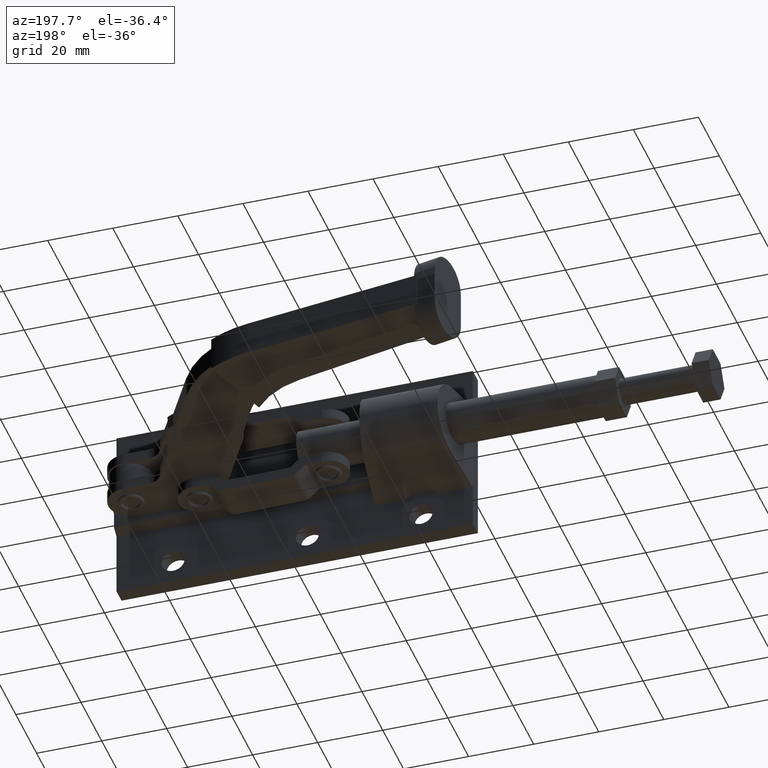
[diagram: clean part render]
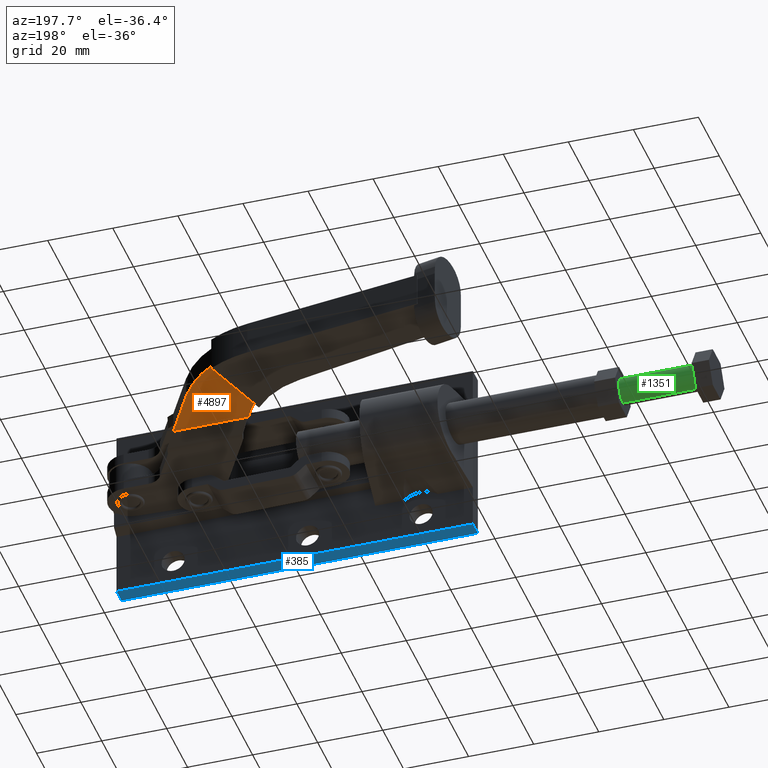
[diagram: same view with three faces highlighted in distinct colors, each labeled with its STEP entity id]
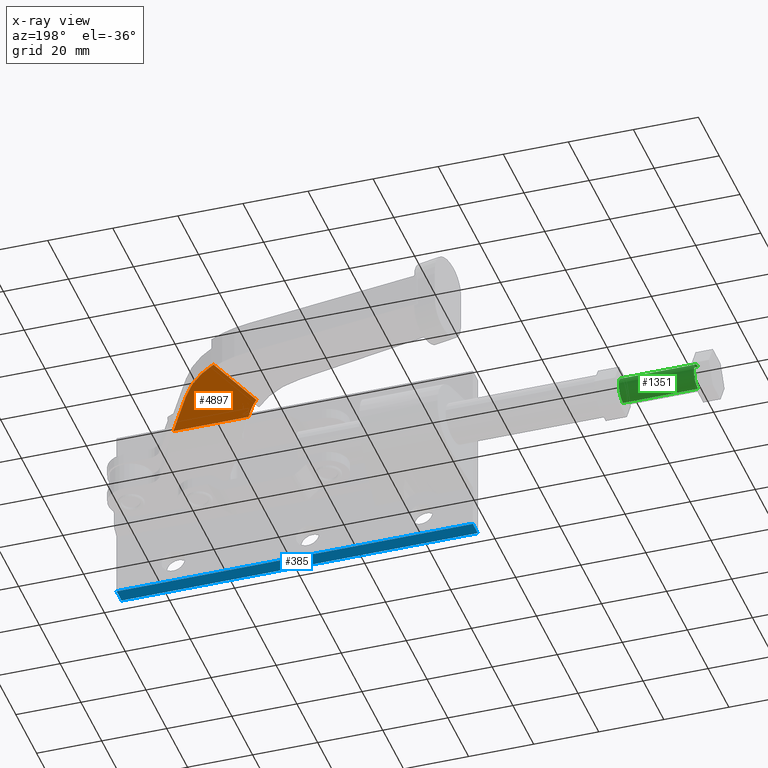
[diagram: x-ray of the same camera — body ghosted, the three highlighted faces saturated]
A machine part, auxiliary view with three faces highlighted in distinct colors.
The next image is the same camera in x-ray (body ghosted, the three faces saturated) — at least one of them is partly hidden behind the body in this view.
Their STEP definitions:

[orange] entity #4897 — the highlighted planar face has unit normal (0, 0, -1).
#431 = CARTESIAN_POINT ( 'NONE',  ( 3.866051372036730000, 70.88861199244561800, -3.125000000000017300 ) ) ;
#726 = CIRCLE ( 'NONE', #759, 33.99999999999999300 ) ;
#759 = AXIS2_PLACEMENT_3D ( 'NONE', #8091, #3936, #8782 ) ;
#836 = CARTESIAN_POINT ( 'NONE',  ( 0.3942034234371977200, 45.93280350291551200, -3.125000000000020000 ) ) ;
#1465 = CARTESIAN_POINT ( 'NONE',  ( 19.24965462170590800, 13.17531681489602000, -3.125000000000015100 ) ) ;
#1475 = AXIS2_PLACEMENT_3D ( 'NONE', #3549, #8418, #4269 ) ;
#1614 = LINE ( 'NONE', #8722, #3243 ) ;
#1622 = VECTOR ( 'NONE', #8994, 1000.000000000000100 ) ;
#1674 = ORIENTED_EDGE ( 'NONE', *, *, #4936, .F. ) ;
#1685 = CARTESIAN_POINT ( 'NONE',  ( -24.73947997960927100, 31.46566976483779900, -3.125000000000020000 ) ) ;
#1790 = DIRECTION ( 'NONE',  ( 0.3106917609542796400, 0.9505107204419783700, 4.767727634121596400E-017 ) ) ;
#2402 = DIRECTION ( 'NONE',  ( 0.9999991443707730900, -0.001308150496583738700, 1.495451272393800000E-016 ) ) ;
#2788 = ORIENTED_EDGE ( 'NONE', *, *, #8765, .F. ) ;
#2880 = DIRECTION ( 'NONE',  ( 0.4988666806233697000, -0.8666787380360849700, 5.515547311301807900E-017 ) ) ;
#3160 = EDGE_CURVE ( 'NONE', #4190, #6098, #5808, .T. ) ;
#3243 = VECTOR ( 'NONE', #1790, 1000.000000000000100 ) ;
#3430 = CARTESIAN_POINT ( 'NONE',  ( 34.35970871110382800, 27.01556243225421700, -3.125000000000013300 ) ) ;
#3456 = EDGE_CURVE ( 'NONE', #8095, #6876, #1614, .T. ) ;
#3549 = CARTESIAN_POINT ( 'NONE',  ( 25.55892362962334700, 16.69071506896925800, -3.125000000000013300 ) ) ;
#3936 = DIRECTION ( 'NONE',  ( -1.528120581711288000E-016, -2.102331816807094500E-019, 1.000000000000000000 ) ) ;
#4087 = VERTEX_POINT ( 'NONE', #8794 ) ;
#4178 = EDGE_LOOP ( 'NONE', ( #6272, #2788, #4880, #5044, #1674, #5832 ) ) ;
#4190 = VERTEX_POINT ( 'NONE', #8200 ) ;
#4269 = DIRECTION ( 'NONE',  ( 0.9999991443707730900, -0.001308150496583842500, 1.528116524040245800E-016 ) ) ;
#4485 = DIRECTION ( 'NONE',  ( -0.9999991443707729700, 0.001308150496583842300, -1.528116524040245500E-016 ) ) ;
#4880 = ORIENTED_EDGE ( 'NONE', *, *, #3160, .F. ) ;
#4897 = ADVANCED_FACE ( 'NONE', ( #6618 ), #6323, .T. ) ;
#4936 = EDGE_CURVE ( 'NONE', #8561, #4087, #7799, .T. ) ;
#5044 = ORIENTED_EDGE ( 'NONE', *, *, #6767, .T. ) ;
#5128 = CARTESIAN_POINT ( 'NONE',  ( -2.815316489072857000, 50.44805779269746900, -3.125000000000016900 ) ) ;
#5328 = AXIS2_PLACEMENT_3D ( 'NONE', #1685, #6596, #2402 ) ;
#5516 = VECTOR ( 'NONE', #4485, 1000.000000000000200 ) ;
#5740 = LINE ( 'NONE', #6580, #5516 ) ;
#5756 = VECTOR ( 'NONE', #2880, 1000.000000000000200 ) ;
#5790 = EDGE_CURVE ( 'NONE', #8095, #8561, #7552, .T. ) ;
#5808 = LINE ( 'NONE', #3430, #1622 ) ;
#5832 = ORIENTED_EDGE ( 'NONE', *, *, #5790, .F. ) ;
#6098 = VERTEX_POINT ( 'NONE', #7005 ) ;
#6272 = ORIENTED_EDGE ( 'NONE', *, *, #3456, .T. ) ;
#6323 = PLANE ( 'NONE',  #1475 ) ;
#6580 = CARTESIAN_POINT ( 'NONE',  ( 25.59349321490081800, 43.11699842780213000, -3.125000000000011500 ) ) ;
#6596 = DIRECTION ( 'NONE',  ( 1.528120581711288000E-016, 2.102331816807094500E-019, -1.000000000000000000 ) ) ;
#6618 = FACE_OUTER_BOUND ( 'NONE', #4178, .T. ) ;
#6767 = EDGE_CURVE ( 'NONE', #4190, #4087, #5740, .T. ) ;
#6876 = VERTEX_POINT ( 'NONE', #431 ) ;
#7005 = CARTESIAN_POINT ( 'NONE',  ( 16.27084289636472300, 58.44126393878162400, -3.125000000000011500 ) ) ;
#7552 = CIRCLE ( 'NONE', #5328, 28.99999999999998600 ) ;
#7799 = LINE ( 'NONE', #1465, #5756 ) ;
#8091 = CARTESIAN_POINT ( 'NONE',  ( -13.19623419686215900, 41.47979679758706300, -3.125000000000020000 ) ) ;
#8095 = VERTEX_POINT ( 'NONE', #5128 ) ;
#8200 = CARTESIAN_POINT ( 'NONE',  ( 25.09122507047121400, 43.11765547068687000, -3.124999992413085800 ) ) ;
#8418 = DIRECTION ( 'NONE',  ( 1.528120581711288000E-016, 2.102331816807094800E-019, -1.000000000000000000 ) ) ;
#8561 = VERTEX_POINT ( 'NONE', #836 ) ;
#8722 = CARTESIAN_POINT ( 'NONE',  ( -10.04544730164047600, 28.32865293163745000, -3.125000000000018200 ) ) ;
#8765 = EDGE_CURVE ( 'NONE', #6098, #6876, #726, .T. ) ;
#8782 = DIRECTION ( 'NONE',  ( 0.9999991443707730900, -0.001308150496583850800, 1.530638361156006500E-016 ) ) ;
#8794 = CARTESIAN_POINT ( 'NONE',  ( 1.997234062796788200, 43.14786591234062000, -3.124999992413088000 ) ) ;
#8994 = DIRECTION ( 'NONE',  ( -0.4988666806233699200, 0.8666787380360848600, -1.106666243442759400E-016 ) ) ;

[blue] entity #385 — the highlighted planar face has unit normal (0, 0, 1).
#169 = CARTESIAN_POINT ( 'NONE',  ( -54.75000000000000000, 4.799999999999999800, -27.79999999999999700 ) ) ;
#385 = ADVANCED_FACE ( 'NONE', ( #8430 ), #2816, .F. ) ;
#393 = EDGE_CURVE ( 'NONE', #1852, #4440, #4968, .T. ) ;
#438 = EDGE_LOOP ( 'NONE', ( #6308, #8415, #4669, #5686 ) ) ;
#1031 = DIRECTION ( 'NONE',  ( -1.000000000000000000, -0.0000000000000000000, 1.267377881992187900E-016 ) ) ;
#1233 = CARTESIAN_POINT ( 'NONE',  ( 54.75000000000000000, 4.799999999999999800, -27.80000000000001100 ) ) ;
#1852 = VERTEX_POINT ( 'NONE', #2805 ) ;
#2175 = EDGE_CURVE ( 'NONE', #7482, #8606, #7537, .T. ) ;
#2324 = CARTESIAN_POINT ( 'NONE',  ( 54.75000000000000000, 4.799999999999999800, -27.80000000000001100 ) ) ;
#2535 = LINE ( 'NONE', #3907, #7868 ) ;
#2655 = LINE ( 'NONE', #4425, #6176 ) ;
#2805 = CARTESIAN_POINT ( 'NONE',  ( -54.75000000000000000, 4.799999999999999800, -27.79999999999999700 ) ) ;
#2816 = PLANE ( 'NONE',  #6209 ) ;
#3524 = CARTESIAN_POINT ( 'NONE',  ( -54.75000000000000000, 0.0000000000000000000, -27.79999999999999700 ) ) ;
#3907 = CARTESIAN_POINT ( 'NONE',  ( -54.75000000000000000, 4.799999999999999800, -27.79999999999999700 ) ) ;
#4060 = VECTOR ( 'NONE', #6156, 1000.000000000000000 ) ;
#4403 = CARTESIAN_POINT ( 'NONE',  ( -54.75000000000000000, 4.799999999999999800, -27.79999999999999700 ) ) ;
#4425 = CARTESIAN_POINT ( 'NONE',  ( -54.75000000000000000, 0.0000000000000000000, -27.79999999999999700 ) ) ;
#4440 = VERTEX_POINT ( 'NONE', #3524 ) ;
#4669 = ORIENTED_EDGE ( 'NONE', *, *, #5890, .F. ) ;
#4755 = VECTOR ( 'NONE', #7908, 1000.000000000000000 ) ;
#4968 = LINE ( 'NONE', #169, #4755 ) ;
#5009 = DIRECTION ( 'NONE',  ( 1.000000000000000000, 0.0000000000000000000, -1.267377881992187900E-016 ) ) ;
#5115 = DIRECTION ( 'NONE',  ( -1.000000000000000000, -0.0000000000000000000, 1.267377881992187900E-016 ) ) ;
#5686 = ORIENTED_EDGE ( 'NONE', *, *, #2175, .T. ) ;
#5890 = EDGE_CURVE ( 'NONE', #7482, #1852, #2535, .T. ) ;
#6156 = DIRECTION ( 'NONE',  ( -0.0000000000000000000, -1.000000000000000000, -0.0000000000000000000 ) ) ;
#6176 = VECTOR ( 'NONE', #5115, 1000.000000000000000 ) ;
#6209 = AXIS2_PLACEMENT_3D ( 'NONE', #4403, #7730, #5009 ) ;
#6308 = ORIENTED_EDGE ( 'NONE', *, *, #6701, .T. ) ;
#6701 = EDGE_CURVE ( 'NONE', #8606, #4440, #2655, .T. ) ;
#7482 = VERTEX_POINT ( 'NONE', #2324 ) ;
#7537 = LINE ( 'NONE', #1233, #4060 ) ;
#7730 = DIRECTION ( 'NONE',  ( 1.267377881992187900E-016, -0.0000000000000000000, 1.000000000000000000 ) ) ;
#7856 = CARTESIAN_POINT ( 'NONE',  ( 54.75000000000000000, 0.0000000000000000000, -27.80000000000001100 ) ) ;
#7868 = VECTOR ( 'NONE', #1031, 1000.000000000000000 ) ;
#7908 = DIRECTION ( 'NONE',  ( -0.0000000000000000000, -1.000000000000000000, -0.0000000000000000000 ) ) ;
#8415 = ORIENTED_EDGE ( 'NONE', *, *, #393, .F. ) ;
#8430 = FACE_OUTER_BOUND ( 'NONE', #438, .T. ) ;
#8606 = VERTEX_POINT ( 'NONE', #7856 ) ;

[green] entity #1351 — the highlighted cylindrical surface (edge-blend (fillet) strip) has radius 4 mm, axis along (-1, -0, -0).
#121 = DIRECTION ( 'NONE',  ( -1.000000000000000000, -0.0000000000000000000, -0.0000000000000000000 ) ) ;
#160 = DIRECTION ( 'NONE',  ( 0.0000000000000000000, 0.0000000000000000000, -1.000000000000000000 ) ) ;
#990 = DIRECTION ( 'NONE',  ( 0.0000000000000000000, 0.0000000000000000000, 1.000000000000000000 ) ) ;
#992 = FACE_OUTER_BOUND ( 'NONE', #5895, .T. ) ;
#1320 = AXIS2_PLACEMENT_3D ( 'NONE', #7370, #3165, #8044 ) ;
#1351 = ADVANCED_FACE ( 'NONE', ( #992 ), #7988, .T. ) ;
#1452 = VERTEX_POINT ( 'NONE', #6039 ) ;
#1667 = DIRECTION ( 'NONE',  ( -1.000000000000000000, -0.0000000000000000000, -0.0000000000000000000 ) ) ;
#2190 = CARTESIAN_POINT ( 'NONE',  ( -133.7349217502501500, 17.50000000000000000, -4.000000000000011500 ) ) ;
#2326 = CARTESIAN_POINT ( 'NONE',  ( -133.7349217502501500, 17.50000000000000000, -1.117108593694364700E-014 ) ) ;
#2336 = AXIS2_PLACEMENT_3D ( 'NONE', #2326, #1667, #990 ) ;
#2508 = VECTOR ( 'NONE', #5727, 1000.000000000000000 ) ;
#3165 = DIRECTION ( 'NONE',  ( 1.000000000000000000, 0.0000000000000000000, 0.0000000000000000000 ) ) ;
#3193 = CIRCLE ( 'NONE', #1320, 4.000000000000000000 ) ;
#4360 = DIRECTION ( 'NONE',  ( 1.000000000000000000, 0.0000000000000000000, -0.0000000000000000000 ) ) ;
#4386 = LINE ( 'NONE', #2190, #2508 ) ;
#4420 = EDGE_CURVE ( 'NONE', #7647, #8281, #5439, .T. ) ;
#4933 = VERTEX_POINT ( 'NONE', #4970 ) ;
#4970 = CARTESIAN_POINT ( 'NONE',  ( -104.9349217502493400, 17.50000000000000000, 3.999999999999988900 ) ) ;
#5017 = CARTESIAN_POINT ( 'NONE',  ( -133.7349217502501500, 17.50000000000000000, 3.999999999999988900 ) ) ;
#5439 = CIRCLE ( 'NONE', #6866, 4.000000000000000000 ) ;
#5586 = ORIENTED_EDGE ( 'NONE', *, *, #4420, .T. ) ;
#5714 = ORIENTED_EDGE ( 'NONE', *, *, #8536, .F. ) ;
#5727 = DIRECTION ( 'NONE',  ( -1.000000000000000000, -0.0000000000000000000, -0.0000000000000000000 ) ) ;
#5895 = EDGE_LOOP ( 'NONE', ( #7432, #6152, #5586, #5714 ) ) ;
#5914 = LINE ( 'NONE', #5017, #6129 ) ;
#6039 = CARTESIAN_POINT ( 'NONE',  ( -104.9349217502493400, 17.50000000000000000, -4.000000000000011500 ) ) ;
#6129 = VECTOR ( 'NONE', #121, 1000.000000000000000 ) ;
#6152 = ORIENTED_EDGE ( 'NONE', *, *, #7999, .T. ) ;
#6304 = EDGE_CURVE ( 'NONE', #1452, #4933, #3193, .T. ) ;
#6866 = AXIS2_PLACEMENT_3D ( 'NONE', #8502, #4360, #160 ) ;
#7370 = CARTESIAN_POINT ( 'NONE',  ( -104.9349217502493400, 17.50000000000000000, -1.117108593694364700E-014 ) ) ;
#7432 = ORIENTED_EDGE ( 'NONE', *, *, #6304, .F. ) ;
#7444 = CARTESIAN_POINT ( 'NONE',  ( -128.0349217502501300, 17.50000000000000000, -4.000000000000011500 ) ) ;
#7647 = VERTEX_POINT ( 'NONE', #7444 ) ;
#7988 = CYLINDRICAL_SURFACE ( 'NONE', #2336, 4.000000000000000000 ) ;
#7999 = EDGE_CURVE ( 'NONE', #1452, #7647, #4386, .T. ) ;
#8044 = DIRECTION ( 'NONE',  ( 0.0000000000000000000, 0.0000000000000000000, -1.000000000000000000 ) ) ;
#8146 = CARTESIAN_POINT ( 'NONE',  ( -128.0349217502501300, 17.50000000000000000, 3.999999999999988900 ) ) ;
#8281 = VERTEX_POINT ( 'NONE', #8146 ) ;
#8502 = CARTESIAN_POINT ( 'NONE',  ( -128.0349217502501300, 17.50000000000000000, -1.117108593694364700E-014 ) ) ;
#8536 = EDGE_CURVE ( 'NONE', #4933, #8281, #5914, .T. ) ;